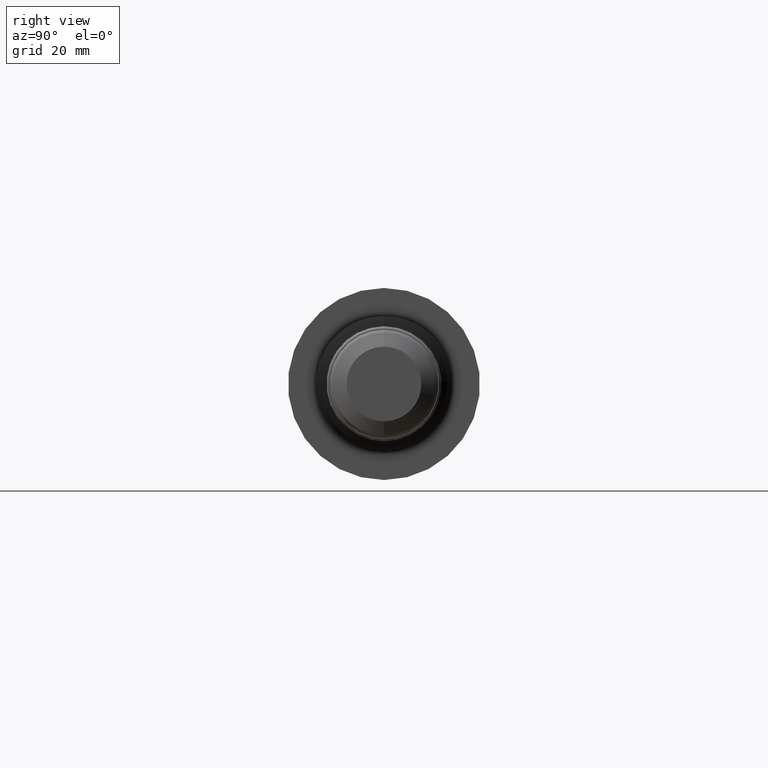
[diagram: clean part render]
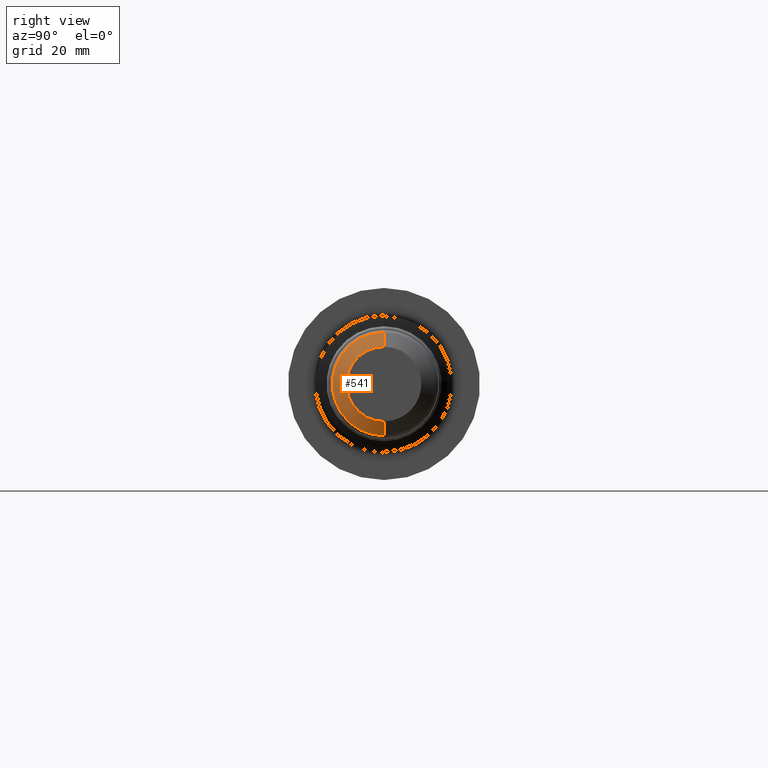
[diagram: same view with one face highlighted and labeled with its STEP entity id]
A machine part, right view. The second image highlights one B-rep face of the part: STEP entity #541.
In plain terms, the highlighted conical surface has half-angle 60 deg.
Its self-contained STEP definition (entity closure, byte-faithful):
#12 = VERTEX_POINT ( 'NONE', #132 ) ;
#47 = CARTESIAN_POINT ( 'NONE',  ( 5.750000000000000000, 4.620325666358820153E-17, -0.3166564434701778508 ) ) ;
#84 = ORIENTED_EDGE ( 'NONE', *, *, #91, .T. ) ;
#91 = EDGE_CURVE ( 'NONE', #341, #260, #518, .T. ) ;
#132 = CARTESIAN_POINT ( 'NONE',  ( 5.679999999999999716, 0.0000000000000000000, 0.4379000000000000115 ) ) ;
#143 = AXIS2_PLACEMENT_3D ( 'NONE', #664, #164, #886 ) ;
#146 = CARTESIAN_POINT ( 'NONE',  ( 5.750000000000000000, 0.0000000000000000000, 0.3166564434701778508 ) ) ;
#163 = VECTOR ( 'NONE', #663, 39.37007874015748854 ) ;
#164 = DIRECTION ( 'NONE',  ( -1.000000000000000000, -0.0000000000000000000, -0.0000000000000000000 ) ) ;
#170 = VERTEX_POINT ( 'NONE', #636 ) ;
#188 = LINE ( 'NONE', #310, #353 ) ;
#215 = DIRECTION ( 'NONE',  ( -1.000000000000000000, -0.0000000000000000000, -0.0000000000000000000 ) ) ;
#221 = EDGE_CURVE ( 'NONE', #341, #170, #188, .T. ) ;
#254 = EDGE_CURVE ( 'NONE', #170, #12, #946, .T. ) ;
#260 = VERTEX_POINT ( 'NONE', #551 ) ;
#310 = CARTESIAN_POINT ( 'NONE',  ( 5.750000000000000000, 3.877922999251381023E-17, -0.3166564434701778508 ) ) ;
#323 = FACE_OUTER_BOUND ( 'NONE', #523, .T. ) ;
#341 = VERTEX_POINT ( 'NONE', #47 ) ;
#353 = VECTOR ( 'NONE', #716, 39.37007874015748854 ) ;
#361 = AXIS2_PLACEMENT_3D ( 'NONE', #955, #215, #691 ) ;
#489 = CONICAL_SURFACE ( 'NONE', #143, 0.3166564434701778508, 1.047197551196600074 ) ;
#502 = EDGE_CURVE ( 'NONE', #260, #12, #544, .T. ) ;
#518 = CIRCLE ( 'NONE', #885, 0.3166564434701778508 ) ;
#523 = EDGE_LOOP ( 'NONE', ( #763, #84, #743, #683 ) ) ;
#541 = ADVANCED_FACE ( 'NONE', ( #323 ), #489, .T. ) ;
#544 = LINE ( 'NONE', #146, #163 ) ;
#551 = CARTESIAN_POINT ( 'NONE',  ( 5.750000000000000000, 0.0000000000000000000, 0.3166564434701778508 ) ) ;
#558 = DIRECTION ( 'NONE',  ( -1.000000000000000000, -0.0000000000000000000, -0.0000000000000000000 ) ) ;
#627 = DIRECTION ( 'NONE',  ( 0.0000000000000000000, 0.0000000000000000000, 1.000000000000000000 ) ) ;
#636 = CARTESIAN_POINT ( 'NONE',  ( 5.679999999999999716, 5.362728333466260515E-17, -0.4379000000000000115 ) ) ;
#663 = DIRECTION ( 'NONE',  ( -0.4999999999999979461, 0.0000000000000000000, 0.8660254037844397068 ) ) ;
#664 = CARTESIAN_POINT ( 'NONE',  ( 5.750000000000000000, 0.0000000000000000000, 0.0000000000000000000 ) ) ;
#683 = ORIENTED_EDGE ( 'NONE', *, *, #254, .F. ) ;
#691 = DIRECTION ( 'NONE',  ( 0.0000000000000000000, 0.0000000000000000000, 1.000000000000000000 ) ) ;
#716 = DIRECTION ( 'NONE',  ( -0.4999999999999979461, 1.060575238724908024E-16, -0.8660254037844397068 ) ) ;
#743 = ORIENTED_EDGE ( 'NONE', *, *, #502, .T. ) ;
#763 = ORIENTED_EDGE ( 'NONE', *, *, #221, .F. ) ;
#885 = AXIS2_PLACEMENT_3D ( 'NONE', #941, #558, #627 ) ;
#886 = DIRECTION ( 'NONE',  ( 0.0000000000000000000, 0.0000000000000000000, 1.000000000000000000 ) ) ;
#941 = CARTESIAN_POINT ( 'NONE',  ( 5.750000000000000000, 0.0000000000000000000, 0.0000000000000000000 ) ) ;
#946 = CIRCLE ( 'NONE', #361, 0.4379000000000000115 ) ;
#955 = CARTESIAN_POINT ( 'NONE',  ( 5.679999999999999716, 0.0000000000000000000, 0.0000000000000000000 ) ) ;